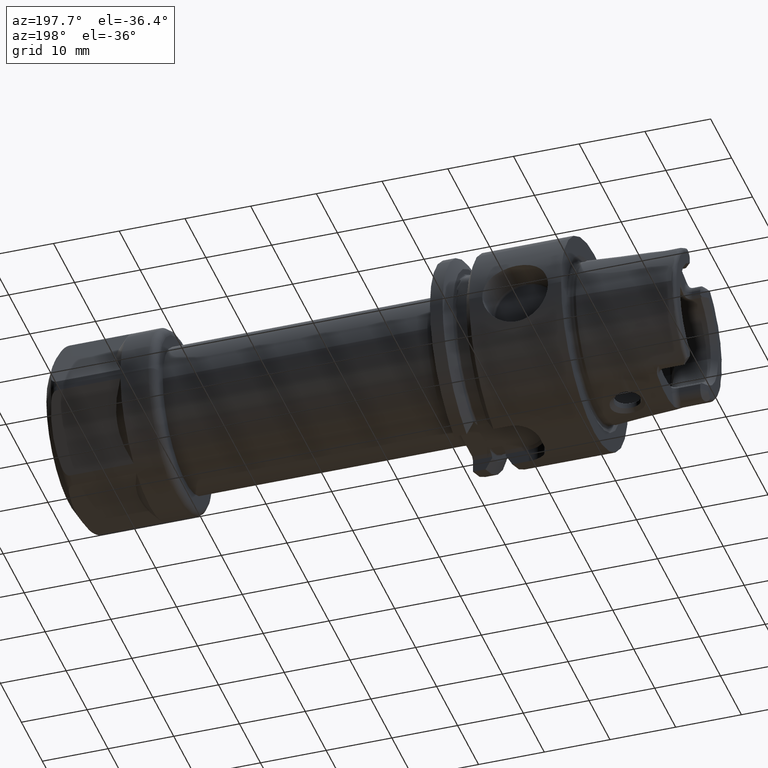
[diagram: clean part render]
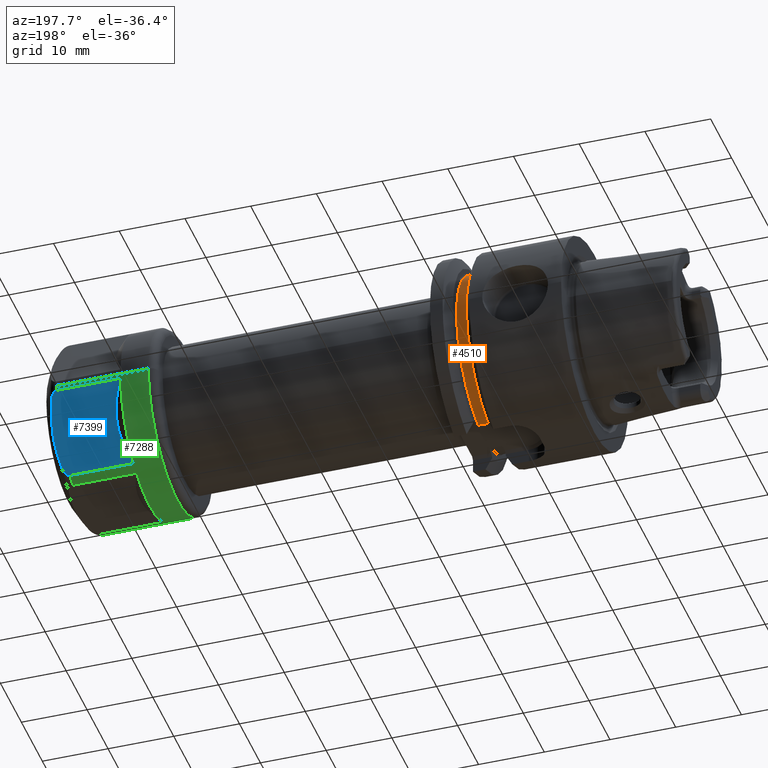
[diagram: same view with three faces highlighted in distinct colors, each labeled with its STEP entity id]
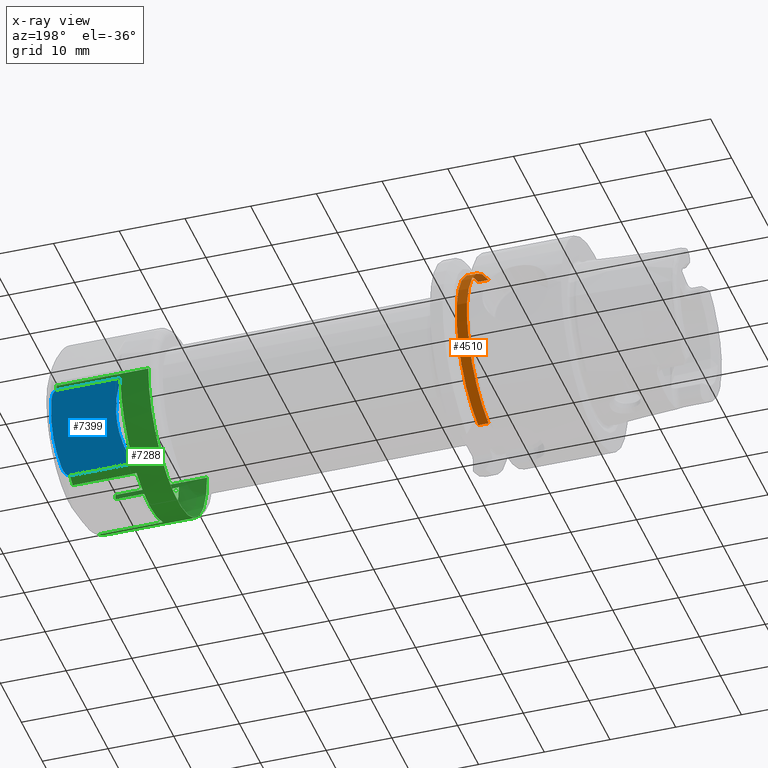
[diagram: x-ray of the same camera — body ghosted, the three highlighted faces saturated]
A machine part, auxiliary view with three faces highlighted in distinct colors.
The next image is the same camera in x-ray (body ghosted, the three faces saturated) — at least one of them is partly hidden behind the body in this view.
Their STEP definitions:

[orange] entity #4510 — the highlighted cylindrical surface (partial cylindrical patch) has radius 13.225 mm, axis along (1, 0, 0).
#1376=CARTESIAN_POINT('',(1.67875E1,0.E0,0.E0));
#1377=DIRECTION('',(-1.E0,0.E0,0.E0));
#1378=DIRECTION('',(0.E0,2.203302612185E-1,9.754253308129E-1));
#1379=AXIS2_PLACEMENT_3D('',#1376,#1377,#1378);
#1396=CARTESIAN_POINT('',(1.52125E1,0.E0,0.E0));
#1397=DIRECTION('',(-1.E0,0.E0,0.E0));
#1398=DIRECTION('',(0.E0,2.203302612185E-1,9.754253308129E-1));
#1399=AXIS2_PLACEMENT_3D('',#1396,#1397,#1398);
#1401=DIRECTION('',(1.E0,0.E0,0.E0));
#1402=VECTOR('',#1401,1.575E0);
#1403=CARTESIAN_POINT('',(1.52125E1,2.913867704615E0,-1.29E1));
#1404=LINE('',#1403,#1402);
#1405=DIRECTION('',(-1.E0,0.E0,0.E0));
#1406=VECTOR('',#1405,1.575E0);
#1407=CARTESIAN_POINT('',(1.67875E1,2.913867704615E0,1.29E1));
#1408=LINE('',#1407,#1406);
#2870=CARTESIAN_POINT('',(1.52125E1,2.913867704615E0,1.29E1));
#2871=CARTESIAN_POINT('',(1.52125E1,2.913867704615E0,-1.29E1));
#2872=VERTEX_POINT('',#2870);
#2873=VERTEX_POINT('',#2871);
#2882=CARTESIAN_POINT('',(1.67875E1,2.913867704615E0,1.29E1));
#2883=CARTESIAN_POINT('',(1.67875E1,2.913867704615E0,-1.29E1));
#2884=VERTEX_POINT('',#2882);
#2885=VERTEX_POINT('',#2883);
#4499=CARTESIAN_POINT('',(1.376132433122E1,0.E0,0.E0));
#4500=DIRECTION('',(1.E0,0.E0,0.E0));
#4501=DIRECTION('',(0.E0,-1.E0,0.E0));
#4502=AXIS2_PLACEMENT_3D('',#4499,#4500,#4501);
#4503=CYLINDRICAL_SURFACE('',#4502,1.3225E1);
#4504=ORIENTED_EDGE('',*,*,#4175,.T.);
#4505=ORIENTED_EDGE('',*,*,#4212,.T.);
#4506=ORIENTED_EDGE('',*,*,#4475,.F.);
#4507=ORIENTED_EDGE('',*,*,#4459,.T.);
#4508=EDGE_LOOP('',(#4504,#4505,#4506,#4507));
#4509=FACE_OUTER_BOUND('',#4508,.F.);
#4510=ADVANCED_FACE('',(#4509),#4503,.T.);
#1380=CIRCLE('',#1379,1.3225E1);
#1400=CIRCLE('',#1399,1.3225E1);
#4175=EDGE_CURVE('',#2872,#2873,#1400,.T.);
#4212=EDGE_CURVE('',#2873,#2885,#1404,.T.);
#4459=EDGE_CURVE('',#2884,#2872,#1408,.T.);
#4475=EDGE_CURVE('',#2884,#2885,#1380,.T.);

[blue] entity #7399 — the highlighted planar face has unit normal (0, -0.866, 0.5).
#6588=CARTESIAN_POINT('',(1.628445554338E1,8.446209258471E0,-1.037073643297E1));
#6589=CARTESIAN_POINT('',(1.644888995402E1,8.846497582803E0,-9.677416717550E0));
#6590=CARTESIAN_POINT('',(1.670318968294E1,9.643182651782E0,-8.297517700447E0));
#6591=CARTESIAN_POINT('',(1.683288207547E1,1.082561227532E1,-6.249489516108E0));
#6592=CARTESIAN_POINT('',(1.670310415631E1,1.200772406709E1,-4.202011832539E0));
#6593=CARTESIAN_POINT('',(1.644884551611E1,1.280424568854E1,-2.822395914862E0));
#6594=CARTESIAN_POINT('',(1.628445554338E1,1.320442583614E1,-2.129263567031E0));
#6691=CARTESIAN_POINT('',(1.520192378865E1,7.672937494076E0,-1.171008241696E1));
#6692=CARTESIAN_POINT('',(1.529096662636E1,7.672937494076E0,-1.171008241696E1));
#6693=CARTESIAN_POINT('',(1.546146335283E1,7.693355425503E0,-1.167471752234E1));
#6694=CARTESIAN_POINT('',(1.570142638899E1,7.779918012653E0,-1.152478672336E1));
#6695=CARTESIAN_POINT('',(1.590512360841E1,7.910907250754E0,-1.129790670773E1));
#6696=CARTESIAN_POINT('',(1.607010427330E1,8.073198101160E0,-1.101681070922E1));
#6697=CARTESIAN_POINT('',(1.619774346523E1,8.257304148875E0,-1.069792968060E1));
#6698=CARTESIAN_POINT('',(1.625821277607E1,8.382325590146E0,-1.048138619228E1));
#6699=CARTESIAN_POINT('',(1.628445554338E1,8.446209258471E0,-1.037073643297E1));
#6791=CARTESIAN_POINT('',(1.628445554338E1,1.320442583614E1,-2.129263567031E0));
#6792=CARTESIAN_POINT('',(1.625780514735E1,1.326930180905E1,-2.016895085765E0));
#6793=CARTESIAN_POINT('',(1.619635457926E1,1.339611855140E1,-1.797242044761E0));
#6794=CARTESIAN_POINT('',(1.606561669937E1,1.358313235992E1,-1.473324626685E0));
#6795=CARTESIAN_POINT('',(1.589737600801E1,1.374600758383E1,-1.191216463575E0));
#6796=CARTESIAN_POINT('',(1.569295978880E1,1.387456556661E1,
-9.685475056944E-1));
#6797=CARTESIAN_POINT('',(1.545738513995E1,1.395784419192E1,
-8.243046954560E-1));
#6798=CARTESIAN_POINT('',(1.528945671766E1,1.397769760054E1,
-7.899175830396E-1));
#6799=CARTESIAN_POINT('',(1.520192378865E1,1.397769760054E1,
-7.899175830396E-1));
#6811=CARTESIAN_POINT('',(6.999950425434E0,1.082840653407E1,-6.254661294811E0));
#6812=CARTESIAN_POINT('',(6.999899958524E0,1.077432860406E1,-6.348327017167E0));
#6813=CARTESIAN_POINT('',(7.011775962653E0,1.065819380374E1,-6.534820425900E0));
#6814=CARTESIAN_POINT('',(6.991325810989E0,1.047927131496E1,-6.850614652808E0));
#6815=CARTESIAN_POINT('',(6.965875493282E0,1.028572172362E1,-7.184273784827E0));
#6816=CARTESIAN_POINT('',(6.923112050200E0,1.007749255007E1,-7.545360283168E0));
#6817=CARTESIAN_POINT('',(6.862169693591E0,9.852189075297E0,-7.935483982019E0));
#6818=CARTESIAN_POINT('',(6.778646239743E0,9.608964406991E0,-8.356791941354E0));
#6819=CARTESIAN_POINT('',(6.668369561038E0,9.346143650123E0,-8.812002307409E0));
#6820=CARTESIAN_POINT('',(6.525682255052E0,9.060940232784E0,-9.305992793055E0));
#6821=CARTESIAN_POINT('',(6.345211979745E0,8.752438632745E0,-9.840327071372E0));
#6822=CARTESIAN_POINT('',(6.121528541569E0,8.419939946990E0,-1.041625268089E1));
#6823=CARTESIAN_POINT('',(5.848516446776E0,8.061815949678E0,-1.103646383744E1));
#6824=CARTESIAN_POINT('',(5.629525372219E0,7.805411018904E0,-1.148076368250E1));
#6825=CARTESIAN_POINT('',(5.510293500412E0,7.672991304169E0,-1.171012135635E1));
#6827=DIRECTION('',(9.999999999765E-1,-5.552223046371E-6,4.017836804348E-6));
#6828=VECTOR('',#6827,9.691630288463E0);
#6829=CARTESIAN_POINT('',(5.510293500412E0,7.672991304169E0,-1.171012135635E1));
#6830=LINE('',#6829,#6828);
#6831=DIRECTION('',(-1.E0,0.E0,0.E0));
#6832=VECTOR('',#6831,9.691378545098E0);
#6833=CARTESIAN_POINT('',(1.520192378865E1,1.397769760054E1,
-7.899175830396E-1));
#6834=LINE('',#6833,#6832);
#6835=CARTESIAN_POINT('',(5.510545243549E0,1.397769760054E1,
-7.899175830396E-1));
#6836=CARTESIAN_POINT('',(5.630051696380E0,1.384496653656E1,-1.019814529580E0));
#6837=CARTESIAN_POINT('',(5.849219067794E0,1.358812148425E1,-1.464683200361E0));
#6838=CARTESIAN_POINT('',(6.121621766702E0,1.323077708934E1,-2.083621890890E0));
#6839=CARTESIAN_POINT('',(6.344885483102E0,1.289890686935E1,-2.658437816683E0));
#6840=CARTESIAN_POINT('',(6.524958742412E0,1.259122391373E1,-3.191360912721E0));
#6841=CARTESIAN_POINT('',(6.667826642150E0,1.230595892689E1,-3.685452183153E0));
#6842=CARTESIAN_POINT('',(6.778840876992E0,1.204150256921E1,-4.143512168335E0));
#6843=CARTESIAN_POINT('',(6.862586643318E0,1.179732865128E1,-4.566403431305E0));
#6844=CARTESIAN_POINT('',(6.923414903333E0,1.157213997825E1,-4.956554992074E0));
#6845=CARTESIAN_POINT('',(6.966082455114E0,1.136371940666E1,-5.317127028992E0));
#6846=CARTESIAN_POINT('',(6.991466653647E0,1.117115632264E1,-5.652234666066E0));
#6847=CARTESIAN_POINT('',(7.011781659473E0,1.098886522708E1,-5.962080720191E0));
#6848=CARTESIAN_POINT('',(7.000000287852E0,1.088183671953E1,-6.162117498938E0));
#6849=CARTESIAN_POINT('',(6.999950425434E0,1.082840653407E1,-6.254661294811E0));
#7135=VERTEX_POINT('',#6588);
#7136=VERTEX_POINT('',#6594);
#7147=VERTEX_POINT('',#6799);
#7148=VERTEX_POINT('',#6691);
#7163=CARTESIAN_POINT('',(5.510084439007E0,1.397815769182E1,
-7.899436528792E-1));
#7164=CARTESIAN_POINT('',(5.510084439007E0,7.673076419476E0,-1.171029438310E1));
#7165=VERTEX_POINT('',#7163);
#7166=VERTEX_POINT('',#7164);
#7179=VERTEX_POINT('',#6849);
#7383=CARTESIAN_POINT('',(1.78E1,1.443375672974E1,0.E0));
#7384=DIRECTION('',(0.E0,-8.660254037844E-1,5.E-1));
#7385=DIRECTION('',(0.E0,-5.E-1,-8.660254037844E-1));
#7386=AXIS2_PLACEMENT_3D('',#7383,#7384,#7385);
#7387=PLANE('',#7386);
#7389=ORIENTED_EDGE('',*,*,#7388,.T.);
#7390=ORIENTED_EDGE('',*,*,#7269,.T.);
#7391=ORIENTED_EDGE('',*,*,#7294,.T.);
#7392=ORIENTED_EDGE('',*,*,#7208,.T.);
#7393=ORIENTED_EDGE('',*,*,#7373,.T.);
#7394=ORIENTED_EDGE('',*,*,#7273,.T.);
#7396=ORIENTED_EDGE('',*,*,#7395,.T.);
#7397=EDGE_LOOP('',(#7389,#7390,#7391,#7392,#7393,#7394,#7396));
#7398=FACE_OUTER_BOUND('',#7397,.F.);
#7399=ADVANCED_FACE('',(#7398),#7387,.F.);
#6595=B_SPLINE_CURVE_WITH_KNOTS('',3,(#6588,#6589,#6590,#6591,#6592,#6593,
#6594),.UNSPECIFIED.,.F.,.F.,(4,1,1,1,4),(0.E0,2.5E-1,5.E-1,7.5E-1,1.E0),
.UNSPECIFIED.);
#6700=B_SPLINE_CURVE_WITH_KNOTS('',3,(#6691,#6692,#6693,#6694,#6695,#6696,#6697,
#6698,#6699),.UNSPECIFIED.,.F.,.F.,(4,1,1,1,1,1,4),(0.E0,1.666666666667E-1,
3.333333333333E-1,5.E-1,6.666666666667E-1,8.333333333333E-1,1.E0),
.UNSPECIFIED.);
#6800=B_SPLINE_CURVE_WITH_KNOTS('',3,(#6791,#6792,#6793,#6794,#6795,#6796,#6797,
#6798,#6799),.UNSPECIFIED.,.F.,.F.,(4,1,1,1,1,1,4),(0.E0,1.666666666667E-1,
3.333333333333E-1,5.E-1,6.666666666667E-1,8.333333333333E-1,1.E0),
.UNSPECIFIED.);
#6826=B_SPLINE_CURVE_WITH_KNOTS('',3,(#6811,#6812,#6813,#6814,#6815,#6816,#6817,
#6818,#6819,#6820,#6821,#6822,#6823,#6824,#6825),.UNSPECIFIED.,.F.,.F.,(4,1,1,1,
1,1,1,1,1,1,1,1,4),(0.E0,8.333333333333E-2,1.666666666667E-1,2.5E-1,
3.333333333333E-1,4.166666666667E-1,5.E-1,5.833333333333E-1,6.666666666667E-1,
7.5E-1,8.333333333333E-1,9.166666666667E-1,1.E0),.UNSPECIFIED.);
#6850=B_SPLINE_CURVE_WITH_KNOTS('',3,(#6835,#6836,#6837,#6838,#6839,#6840,#6841,
#6842,#6843,#6844,#6845,#6846,#6847,#6848,#6849),.UNSPECIFIED.,.F.,.F.,(4,1,1,1,
1,1,1,1,1,1,1,1,4),(0.E0,8.333333333333E-2,1.666666666667E-1,2.5E-1,
3.333333333333E-1,4.166666666667E-1,5.E-1,5.833333333333E-1,6.666666666667E-1,
7.5E-1,8.333333333333E-1,9.166666666667E-1,1.E0),.UNSPECIFIED.);
#7208=EDGE_CURVE('',#7135,#7136,#6595,.T.);
#7269=EDGE_CURVE('',#7166,#7148,#6830,.T.);
#7273=EDGE_CURVE('',#7147,#7165,#6834,.T.);
#7294=EDGE_CURVE('',#7148,#7135,#6700,.T.);
#7373=EDGE_CURVE('',#7136,#7147,#6800,.T.);
#7388=EDGE_CURVE('',#7179,#7166,#6826,.T.);
#7395=EDGE_CURVE('',#7165,#7179,#6850,.T.);

[green] entity #7288 — the highlighted cylindrical surface (partial cylindrical patch) has radius 14 mm, axis along (1, 0, 0).
#6629=DIRECTION('',(9.999999999920E-1,-3.872004474659E-6,-1.005862216071E-6));
#6630=VECTOR('',#6629,9.691332242427E0);
#6631=CARTESIAN_POINT('',(5.510591546297E0,-1.397766007565E1,
-7.899078348947E-1));
#6632=LINE('',#6631,#6630);
#6633=DIRECTION('',(-1.E0,0.E0,0.E0));
#6634=VECTOR('',#6633,9.691561833753E0);
#6635=CARTESIAN_POINT('',(1.520192378865E1,-7.672937494076E0,
-1.171008241696E1));
#6636=LINE('',#6635,#6634);
#6653=CARTESIAN_POINT('',(5.510095784574E0,3.604537624320E-3,
2.338467829302E-3));
#6654=DIRECTION('',(-1.E0,0.E0,0.E0));
#6655=DIRECTION('',(0.E0,-5.481704884959E-1,-8.363666155115E-1));
#6656=AXIS2_PLACEMENT_3D('',#6653,#6654,#6655);
#6658=CARTESIAN_POINT('',(1.520192378865E1,0.E0,0.E0));
#6659=DIRECTION('',(-1.E0,0.E0,0.E0));
#6660=DIRECTION('',(0.E0,-4.503400076042E-1,-8.928571428571E-1));
#6661=AXIS2_PLACEMENT_3D('',#6658,#6659,#6660);
#6663=CARTESIAN_POINT('',(1.520192378865E1,0.E0,0.E0));
#6664=DIRECTION('',(-1.E0,0.E0,0.E0));
#6665=DIRECTION('',(0.E0,5.480669638626E-1,-8.364344583543E-1));
#6666=AXIS2_PLACEMENT_3D('',#6663,#6664,#6665);
#6668=CARTESIAN_POINT('',(1.520192378865E1,0.E0,0.E0));
#6669=DIRECTION('',(-1.E0,0.E0,0.E0));
#6670=DIRECTION('',(0.E0,1.E0,0.E0));
#6671=AXIS2_PLACEMENT_3D('',#6668,#6669,#6670);
#6673=DIRECTION('',(-1.E0,0.E0,1.133010541669E-10));
#6674=VECTOR('',#6673,1.395192378865E1);
#6675=CARTESIAN_POINT('',(1.520192378865E1,1.4E1,-1.972953879608E-10));
#6676=LINE('',#6675,#6674);
#6677=CARTESIAN_POINT('',(1.25E0,0.E0,0.E0));
#6678=DIRECTION('',(-1.E0,0.E0,0.E0));
#6679=DIRECTION('',(0.E0,1.E0,0.E0));
#6680=AXIS2_PLACEMENT_3D('',#6677,#6678,#6679);
#6682=DIRECTION('',(-1.E0,0.E0,-1.133011566448E-10));
#6683=VECTOR('',#6682,1.395192378865E1);
#6684=CARTESIAN_POINT('',(1.520192378865E1,-1.4E1,1.972953760202E-10));
#6685=LINE('',#6684,#6683);
#6686=CARTESIAN_POINT('',(1.520192378865E1,0.E0,0.E0));
#6687=DIRECTION('',(-1.E0,0.E0,0.E0));
#6688=DIRECTION('',(0.E0,-9.984069714668E-1,-5.642268450283E-2));
#6689=AXIS2_PLACEMENT_3D('',#6686,#6687,#6688);
#6691=CARTESIAN_POINT('',(1.520192378865E1,7.672937494076E0,-1.171008241696E1));
#6709=CARTESIAN_POINT('',(1.520192378865E1,6.304760106459E0,-1.25E1));
#6719=CARTESIAN_POINT('',(1.520192378865E1,-7.672937494076E0,
-1.171008241696E1));
#6721=CARTESIAN_POINT('',(1.520192378865E1,-6.304760106459E0,-1.25E1));
#6731=CARTESIAN_POINT('',(1.520192378865E1,-1.397769760054E1,
-7.899175830396E-1));
#6799=CARTESIAN_POINT('',(1.520192378865E1,1.397769760054E1,
-7.899175830396E-1));
#6827=DIRECTION('',(9.999999999765E-1,-5.552223046371E-6,4.017836804348E-6));
#6828=VECTOR('',#6827,9.691630288463E0);
#6829=CARTESIAN_POINT('',(5.510293500412E0,7.672991304169E0,-1.171012135635E1));
#6830=LINE('',#6829,#6828);
#6831=DIRECTION('',(-1.E0,0.E0,0.E0));
#6832=VECTOR('',#6831,9.691378545098E0);
#6833=CARTESIAN_POINT('',(1.520192378865E1,1.397769760054E1,
-7.899175830396E-1));
#6834=LINE('',#6833,#6832);
#6851=CARTESIAN_POINT('',(5.510084439007E0,-3.505438817552E-3,
2.289821475420E-3));
#6852=DIRECTION('',(-1.E0,0.E0,0.E0));
#6853=DIRECTION('',(0.E0,9.983985459437E-1,-5.657157817732E-2));
#6854=AXIS2_PLACEMENT_3D('',#6851,#6852,#6853);
#6872=DIRECTION('',(9.999999999999E-1,-9.964367159688E-8,4.341630987369E-7));
#6873=VECTOR('',#6872,9.691827833895E0);
#6874=CARTESIAN_POINT('',(5.510095954753E0,-6.304759140730E0,
-1.250000420783E1));
#6875=LINE('',#6874,#6873);
#6876=DIRECTION('',(-1.E0,0.E0,0.E0));
#6877=VECTOR('',#6876,9.691824900383E0);
#6878=CARTESIAN_POINT('',(1.520192378865E1,6.304760106459E0,-1.25E1));
#6879=LINE('',#6878,#6877);
#6896=CARTESIAN_POINT('',(5.510019594414E0,1.294353643637E-6,
9.212448762081E-4));
#6897=DIRECTION('',(-1.E0,0.E0,0.E0));
#6898=DIRECTION('',(0.E0,4.503134764951E-1,-8.928705241449E-1));
#6899=AXIS2_PLACEMENT_3D('',#6896,#6897,#6898);
#7115=CARTESIAN_POINT('',(1.25E0,1.4E1,0.E0));
#7116=CARTESIAN_POINT('',(1.25E0,-1.4E1,0.E0));
#7117=VERTEX_POINT('',#7115);
#7118=VERTEX_POINT('',#7116);
#7123=CARTESIAN_POINT('',(1.520192378865E1,1.4E1,-1.972953879608E-10));
#7124=VERTEX_POINT('',#7123);
#7125=CARTESIAN_POINT('',(1.520192378865E1,-1.4E1,1.972953760202E-10));
#7126=VERTEX_POINT('',#7125);
#7145=VERTEX_POINT('',#6719);
#7146=VERTEX_POINT('',#6731);
#7147=VERTEX_POINT('',#6799);
#7148=VERTEX_POINT('',#6691);
#7149=VERTEX_POINT('',#6709);
#7150=VERTEX_POINT('',#6721);
#7155=CARTESIAN_POINT('',(5.510095784574E0,-7.673083408015E0,
-1.171030504395E1));
#7156=CARTESIAN_POINT('',(5.510095784574E0,-1.397816374626E1,
-7.899439973725E-1));
#7157=VERTEX_POINT('',#7155);
#7158=VERTEX_POINT('',#7156);
#7159=CARTESIAN_POINT('',(5.510019594414E0,6.304795814642E0,-1.250007080131E1));
#7160=CARTESIAN_POINT('',(5.510019594414E0,-6.304795289710E0,
-1.250006976046E1));
#7161=VERTEX_POINT('',#7159);
#7162=VERTEX_POINT('',#7160);
#7163=CARTESIAN_POINT('',(5.510084439007E0,1.397815769182E1,
-7.899436528792E-1));
#7164=CARTESIAN_POINT('',(5.510084439007E0,7.673076419476E0,-1.171029438310E1));
#7165=VERTEX_POINT('',#7163);
#7166=VERTEX_POINT('',#7164);
#7252=CARTESIAN_POINT('',(-8.9E-1,0.E0,0.E0));
#7253=DIRECTION('',(1.E0,0.E0,0.E0));
#7254=DIRECTION('',(0.E0,-1.E0,0.E0));
#7255=AXIS2_PLACEMENT_3D('',#7252,#7253,#7254);
#7256=CYLINDRICAL_SURFACE('',#7255,1.4E1);
#7257=ORIENTED_EDGE('',*,*,#7245,.F.);
#7258=ORIENTED_EDGE('',*,*,#7233,.F.);
#7260=ORIENTED_EDGE('',*,*,#7259,.F.);
#7262=ORIENTED_EDGE('',*,*,#7261,.F.);
#7264=ORIENTED_EDGE('',*,*,#7263,.F.);
#7266=ORIENTED_EDGE('',*,*,#7265,.F.);
#7268=ORIENTED_EDGE('',*,*,#7267,.F.);
#7270=ORIENTED_EDGE('',*,*,#7269,.F.);
#7272=ORIENTED_EDGE('',*,*,#7271,.F.);
#7274=ORIENTED_EDGE('',*,*,#7273,.F.);
#7276=ORIENTED_EDGE('',*,*,#7275,.F.);
#7278=ORIENTED_EDGE('',*,*,#7277,.T.);
#7280=ORIENTED_EDGE('',*,*,#7279,.T.);
#7282=ORIENTED_EDGE('',*,*,#7281,.F.);
#7284=ORIENTED_EDGE('',*,*,#7283,.F.);
#7285=ORIENTED_EDGE('',*,*,#7226,.F.);
#7286=EDGE_LOOP('',(#7257,#7258,#7260,#7262,#7264,#7266,#7268,#7270,#7272,#7274,
#7276,#7278,#7280,#7282,#7284,#7285));
#7287=FACE_OUTER_BOUND('',#7286,.F.);
#7288=ADVANCED_FACE('',(#7287),#7256,.T.);
#6657=CIRCLE('',#6656,1.400419779383E1);
#6662=CIRCLE('',#6661,1.4E1);
#6667=CIRCLE('',#6666,1.4E1);
#6672=CIRCLE('',#6671,1.4E1);
#6681=CIRCLE('',#6680,1.4E1);
#6690=CIRCLE('',#6689,1.4E1);
#6855=CIRCLE('',#6854,1.400409003743E1);
#6900=CIRCLE('',#6899,1.400090125963E1);
#7226=EDGE_CURVE('',#7158,#7146,#6632,.T.);
#7233=EDGE_CURVE('',#7145,#7157,#6636,.T.);
#7245=EDGE_CURVE('',#7157,#7158,#6657,.T.);
#7259=EDGE_CURVE('',#7150,#7145,#6662,.T.);
#7261=EDGE_CURVE('',#7162,#7150,#6875,.T.);
#7263=EDGE_CURVE('',#7161,#7162,#6900,.T.);
#7265=EDGE_CURVE('',#7149,#7161,#6879,.T.);
#7267=EDGE_CURVE('',#7148,#7149,#6667,.T.);
#7269=EDGE_CURVE('',#7166,#7148,#6830,.T.);
#7271=EDGE_CURVE('',#7165,#7166,#6855,.T.);
#7273=EDGE_CURVE('',#7147,#7165,#6834,.T.);
#7275=EDGE_CURVE('',#7124,#7147,#6672,.T.);
#7277=EDGE_CURVE('',#7124,#7117,#6676,.T.);
#7279=EDGE_CURVE('',#7117,#7118,#6681,.T.);
#7281=EDGE_CURVE('',#7126,#7118,#6685,.T.);
#7283=EDGE_CURVE('',#7146,#7126,#6690,.T.);